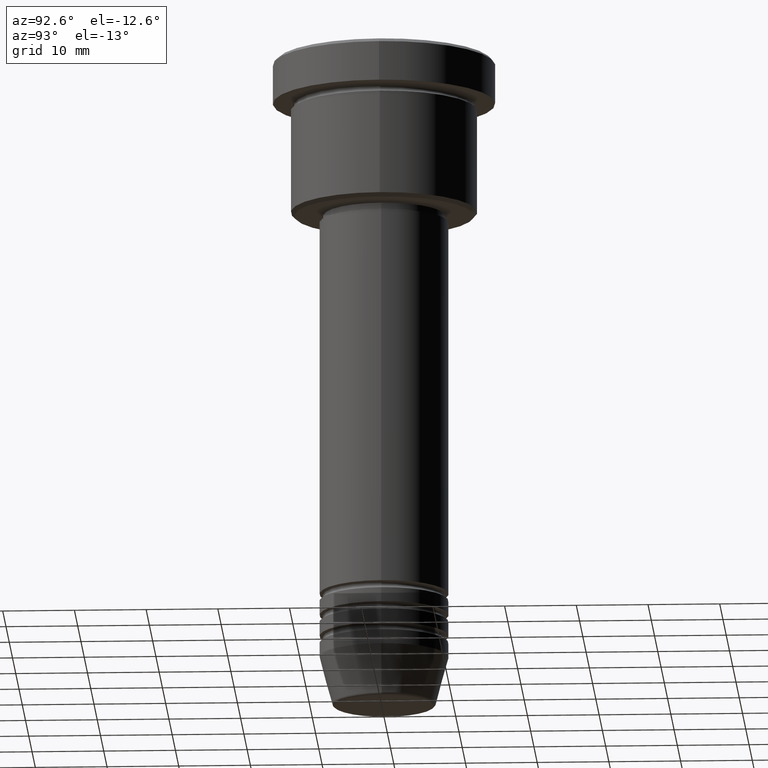
[diagram: clean part render]
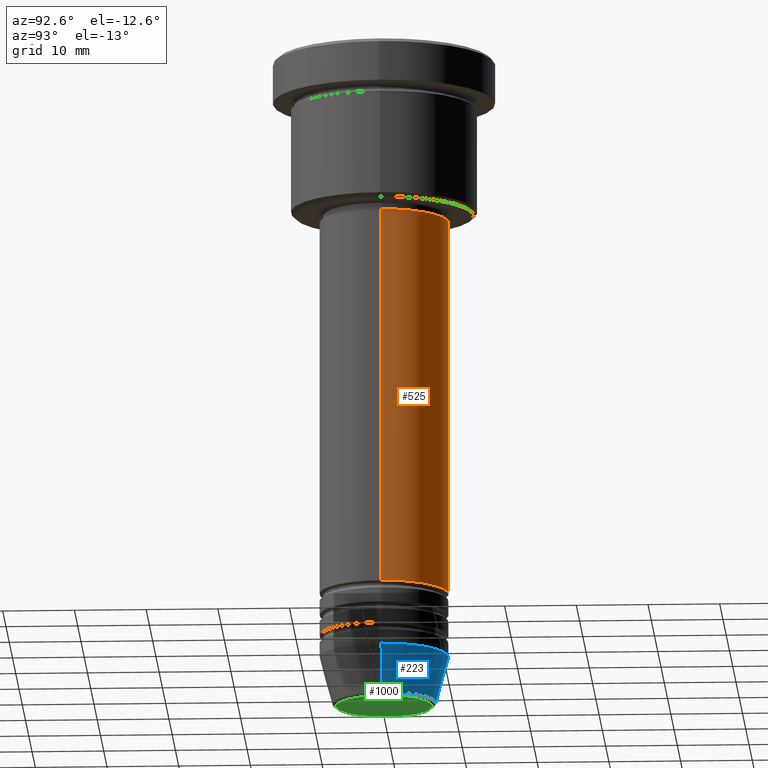
[diagram: same view with three faces highlighted in distinct colors, each labeled with its STEP entity id]
A machine part, auxiliary view with three faces highlighted in distinct colors.
Their STEP definitions:

[orange] entity #525 — the highlighted cylindrical surface (partial cylindrical patch) has radius 9 mm, axis along (-0, -0, 1).
#11 = DIRECTION ( 'NONE',  ( -0.000000000000000000, -0.000000000000000000, 1.000000000000000000 ) ) ;
#18 = DIRECTION ( 'NONE',  ( 1.000000000000000000, 0.000000000000000000, 0.000000000000000000 ) ) ;
#50 = ORIENTED_EDGE ( 'NONE', *, *, #205, .F. ) ;
#134 = DIRECTION ( 'NONE',  ( -0.000000000000000000, -0.000000000000000000, 1.000000000000000000 ) ) ;
#186 = DIRECTION ( 'NONE',  ( -0.000000000000000000, -0.000000000000000000, 1.000000000000000000 ) ) ;
#200 = CARTESIAN_POINT ( 'NONE',  ( 9.000000000000000000, 0.000000000000000000, 0.000000000000000000 ) ) ;
#205 = EDGE_CURVE ( 'NONE', #591, #687, #332, .T. ) ;
#211 = DIRECTION ( 'NONE',  ( -0.000000000000000000, -0.000000000000000000, 1.000000000000000000 ) ) ;
#227 = FACE_OUTER_BOUND ( 'NONE', #1130, .T. ) ;
#254 = ORIENTED_EDGE ( 'NONE', *, *, #312, .T. ) ;
#274 = AXIS2_PLACEMENT_3D ( 'NONE', #962, #134, #503 ) ;
#312 = EDGE_CURVE ( 'NONE', #391, #973, #811, .T. ) ;
#332 = CIRCLE ( 'NONE', #384, 9.000000000000000000 ) ;
#360 = EDGE_CURVE ( 'NONE', #973, #687, #646, .T. ) ;
#384 = AXIS2_PLACEMENT_3D ( 'NONE', #1082, #613, #992 ) ;
#391 = VERTEX_POINT ( 'NONE', #787 ) ;
#467 = ORIENTED_EDGE ( 'NONE', *, *, #692, .F. ) ;
#503 = DIRECTION ( 'NONE',  ( 1.000000000000000000, 0.000000000000000000, 0.000000000000000000 ) ) ;
#525 = ADVANCED_FACE ( 'NONE', ( #227 ), #593, .T. ) ;
#537 = CARTESIAN_POINT ( 'NONE',  ( 9.000000000000000000, 0.000000000000000000, -22.99999999999996447 ) ) ;
#560 = VECTOR ( 'NONE', #186, 1000.000000000000000 ) ;
#567 = ORIENTED_EDGE ( 'NONE', *, *, #360, .T. ) ;
#591 = VERTEX_POINT ( 'NONE', #537 ) ;
#593 = CYLINDRICAL_SURFACE ( 'NONE', #274, 9.000000000000000000 ) ;
#613 = DIRECTION ( 'NONE',  ( -0.000000000000000000, -0.000000000000000000, 1.000000000000000000 ) ) ;
#634 = AXIS2_PLACEMENT_3D ( 'NONE', #844, #211, #18 ) ;
#646 = LINE ( 'NONE', #1011, #560 ) ;
#687 = VERTEX_POINT ( 'NONE', #760 ) ;
#692 = EDGE_CURVE ( 'NONE', #391, #591, #1126, .T. ) ;
#713 = VECTOR ( 'NONE', #11, 1000.000000000000000 ) ;
#760 = CARTESIAN_POINT ( 'NONE',  ( -9.000000000000000000, 1.102182119232617714E-15, -22.99999999999996447 ) ) ;
#787 = CARTESIAN_POINT ( 'NONE',  ( 9.000000000000000000, 0.000000000000000000, -75.99999999999997158 ) ) ;
#811 = CIRCLE ( 'NONE', #634, 9.000000000000000000 ) ;
#844 = CARTESIAN_POINT ( 'NONE',  ( 0.000000000000000000, 0.000000000000000000, -75.99999999999997158 ) ) ;
#957 = CARTESIAN_POINT ( 'NONE',  ( -9.000000000000000000, 1.102182119232617714E-15, -75.99999999999997158 ) ) ;
#962 = CARTESIAN_POINT ( 'NONE',  ( 0.000000000000000000, 0.000000000000000000, 0.000000000000000000 ) ) ;
#973 = VERTEX_POINT ( 'NONE', #957 ) ;
#992 = DIRECTION ( 'NONE',  ( 1.000000000000000000, 0.000000000000000000, 0.000000000000000000 ) ) ;
#1011 = CARTESIAN_POINT ( 'NONE',  ( -9.000000000000000000, 1.102182119232617714E-15, 0.000000000000000000 ) ) ;
#1082 = CARTESIAN_POINT ( 'NONE',  ( 0.000000000000000000, 0.000000000000000000, -22.99999999999996447 ) ) ;
#1126 = LINE ( 'NONE', #200, #713 ) ;
#1130 = EDGE_LOOP ( 'NONE', ( #254, #567, #50, #467 ) ) ;

[blue] entity #223 — the highlighted conical surface has half-angle 15 deg.
#2 = CIRCLE ( 'NONE', #674, 9.000000000000000000 ) ;
#61 = CONICAL_SURFACE ( 'NONE', #964, 9.000000000000000000, 0.2617993877991500740 ) ;
#92 = DIRECTION ( 'NONE',  ( 0.2588190451025213501, 0.000000000000000000, 0.9659258262890680902 ) ) ;
#93 = ORIENTED_EDGE ( 'NONE', *, *, #488, .T. ) ;
#105 = VERTEX_POINT ( 'NONE', #902 ) ;
#129 = CARTESIAN_POINT ( 'NONE',  ( 0.000000000000000000, 0.000000000000000000, -91.62940952255125637 ) ) ;
#181 = CARTESIAN_POINT ( 'NONE',  ( -9.000000000000000000, 1.102182119232617714E-15, -84.99999999999998579 ) ) ;
#223 = ADVANCED_FACE ( 'NONE', ( #1158 ), #61, .T. ) ;
#241 = DIRECTION ( 'NONE',  ( -0.000000000000000000, -0.000000000000000000, 1.000000000000000000 ) ) ;
#323 = ORIENTED_EDGE ( 'NONE', *, *, #433, .F. ) ;
#340 = EDGE_LOOP ( 'NONE', ( #93, #990, #323, #1066 ) ) ;
#433 = EDGE_CURVE ( 'NONE', #605, #704, #2, .T. ) ;
#446 = VECTOR ( 'NONE', #838, 1000.000000000000000 ) ;
#488 = EDGE_CURVE ( 'NONE', #105, #904, #891, .T. ) ;
#498 = DIRECTION ( 'NONE',  ( -0.000000000000000000, -0.000000000000000000, 1.000000000000000000 ) ) ;
#515 = DIRECTION ( 'NONE',  ( 1.000000000000000000, 0.000000000000000000, 0.000000000000000000 ) ) ;
#563 = AXIS2_PLACEMENT_3D ( 'NONE', #129, #241, #515 ) ;
#604 = DIRECTION ( 'NONE',  ( 1.000000000000000000, 0.000000000000000000, 0.000000000000000000 ) ) ;
#605 = VERTEX_POINT ( 'NONE', #1174 ) ;
#635 = LINE ( 'NONE', #1012, #754 ) ;
#674 = AXIS2_PLACEMENT_3D ( 'NONE', #693, #498, #1139 ) ;
#693 = CARTESIAN_POINT ( 'NONE',  ( 0.000000000000000000, 0.000000000000000000, -84.99999999999998579 ) ) ;
#703 = CARTESIAN_POINT ( 'NONE',  ( 0.000000000000000000, 0.000000000000000000, -84.99999999999998579 ) ) ;
#704 = VERTEX_POINT ( 'NONE', #933 ) ;
#735 = EDGE_CURVE ( 'NONE', #904, #704, #1007, .T. ) ;
#754 = VECTOR ( 'NONE', #92, 1000.000000000000000 ) ;
#781 = CARTESIAN_POINT ( 'NONE',  ( -7.223655072137189492, 9.934123627281765110E-16, -91.62940952255125637 ) ) ;
#838 = DIRECTION ( 'NONE',  ( -0.2588190451025213501, 3.169619151431772337E-17, 0.9659258262890680902 ) ) ;
#891 = CIRCLE ( 'NONE', #563, 7.223655072137188604 ) ;
#902 = CARTESIAN_POINT ( 'NONE',  ( 7.223655072137188604, 0.000000000000000000, -91.62940952255125637 ) ) ;
#904 = VERTEX_POINT ( 'NONE', #781 ) ;
#933 = CARTESIAN_POINT ( 'NONE',  ( -9.000000000000000000, 1.102182119232617714E-15, -84.99999999999998579 ) ) ;
#964 = AXIS2_PLACEMENT_3D ( 'NONE', #703, #1057, #604 ) ;
#990 = ORIENTED_EDGE ( 'NONE', *, *, #735, .T. ) ;
#1007 = LINE ( 'NONE', #181, #446 ) ;
#1012 = CARTESIAN_POINT ( 'NONE',  ( 9.000000000000000000, 0.000000000000000000, -84.99999999999998579 ) ) ;
#1057 = DIRECTION ( 'NONE',  ( -0.000000000000000000, -0.000000000000000000, 1.000000000000000000 ) ) ;
#1066 = ORIENTED_EDGE ( 'NONE', *, *, #1088, .F. ) ;
#1088 = EDGE_CURVE ( 'NONE', #105, #605, #635, .T. ) ;
#1139 = DIRECTION ( 'NONE',  ( 1.000000000000000000, 0.000000000000000000, 0.000000000000000000 ) ) ;
#1158 = FACE_OUTER_BOUND ( 'NONE', #340, .T. ) ;
#1174 = CARTESIAN_POINT ( 'NONE',  ( 9.000000000000000000, 0.000000000000000000, -84.99999999999998579 ) ) ;

[green] entity #1000 — the highlighted planar face has unit normal (0, -0, 1).
#13 = EDGE_CURVE ( 'NONE', #1104, #650, #155, .T. ) ;
#59 = AXIS2_PLACEMENT_3D ( 'NONE', #670, #779, #401 ) ;
#63 = PLANE ( 'NONE',  #1170 ) ;
#91 = CARTESIAN_POINT ( 'NONE',  ( 0.000000000000000000, 0.000000000000000000, -92.00000000000000000 ) ) ;
#151 = FACE_OUTER_BOUND ( 'NONE', #1133, .T. ) ;
#152 = CARTESIAN_POINT ( 'NONE',  ( 6.740692158992653837, 0.000000000000000000, -92.00000000000000000 ) ) ;
#155 = CIRCLE ( 'NONE', #59, 6.740692158992653837 ) ;
#171 = CARTESIAN_POINT ( 'NONE',  ( -6.740692158992653837, 8.550696569392682723E-16, -92.00000000000000000 ) ) ;
#193 = CIRCLE ( 'NONE', #505, 6.740692158992653837 ) ;
#401 = DIRECTION ( 'NONE',  ( 1.000000000000000000, 0.000000000000000000, 0.000000000000000000 ) ) ;
#468 = DIRECTION ( 'NONE',  ( 1.000000000000000000, 0.000000000000000000, 0.000000000000000000 ) ) ;
#505 = AXIS2_PLACEMENT_3D ( 'NONE', #91, #656, #468 ) ;
#524 = CARTESIAN_POINT ( 'NONE',  ( 0.000000000000000000, 0.000000000000000000, -92.00000000000000000 ) ) ;
#626 = ORIENTED_EDGE ( 'NONE', *, *, #719, .T. ) ;
#650 = VERTEX_POINT ( 'NONE', #152 ) ;
#656 = DIRECTION ( 'NONE',  ( 0.000000000000000000, 0.000000000000000000, -1.000000000000000000 ) ) ;
#670 = CARTESIAN_POINT ( 'NONE',  ( 0.000000000000000000, 0.000000000000000000, -92.00000000000000000 ) ) ;
#719 = EDGE_CURVE ( 'NONE', #650, #1104, #193, .T. ) ;
#779 = DIRECTION ( 'NONE',  ( 0.000000000000000000, 0.000000000000000000, -1.000000000000000000 ) ) ;
#789 = DIRECTION ( 'NONE',  ( 0.000000000000000000, -0.000000000000000000, 1.000000000000000000 ) ) ;
#1000 = ADVANCED_FACE ( 'NONE', ( #151 ), #63, .F. ) ;
#1097 = DIRECTION ( 'NONE',  ( 1.000000000000000000, 0.000000000000000000, 0.000000000000000000 ) ) ;
#1104 = VERTEX_POINT ( 'NONE', #171 ) ;
#1133 = EDGE_LOOP ( 'NONE', ( #626, #1142 ) ) ;
#1142 = ORIENTED_EDGE ( 'NONE', *, *, #13, .T. ) ;
#1170 = AXIS2_PLACEMENT_3D ( 'NONE', #524, #789, #1097 ) ;